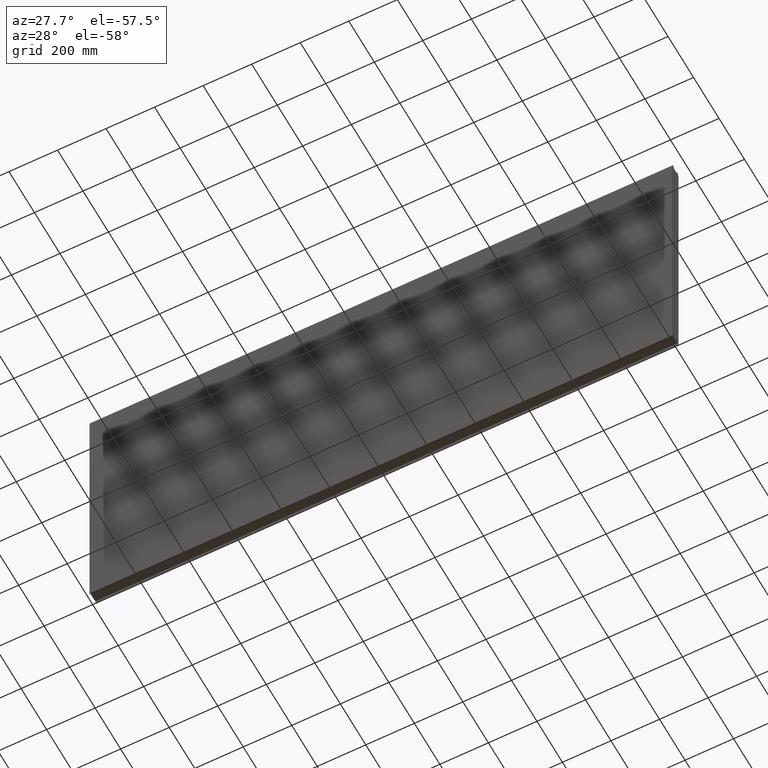
[diagram: clean part render]
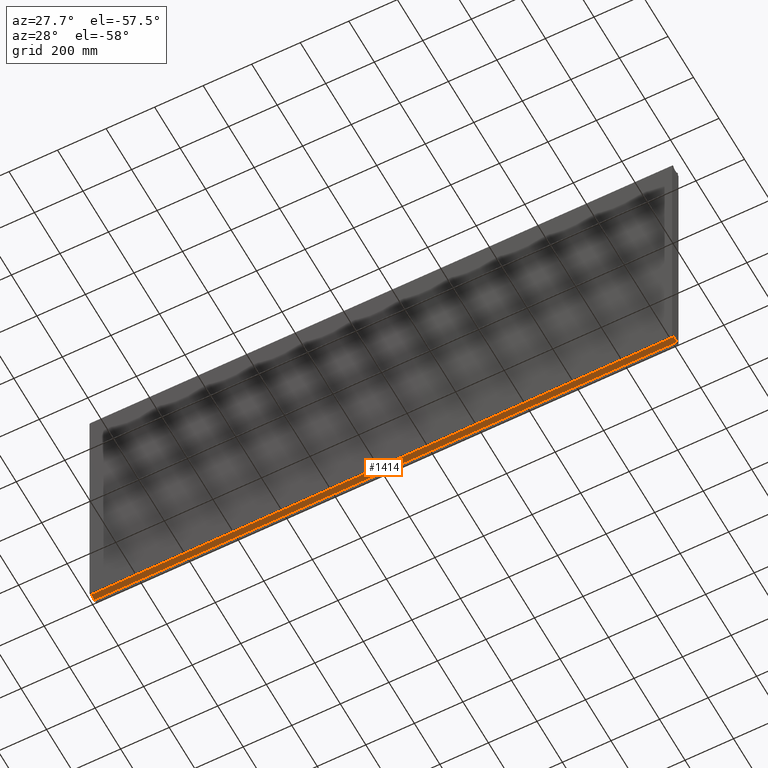
[diagram: same view with one face highlighted and labeled with its STEP entity id]
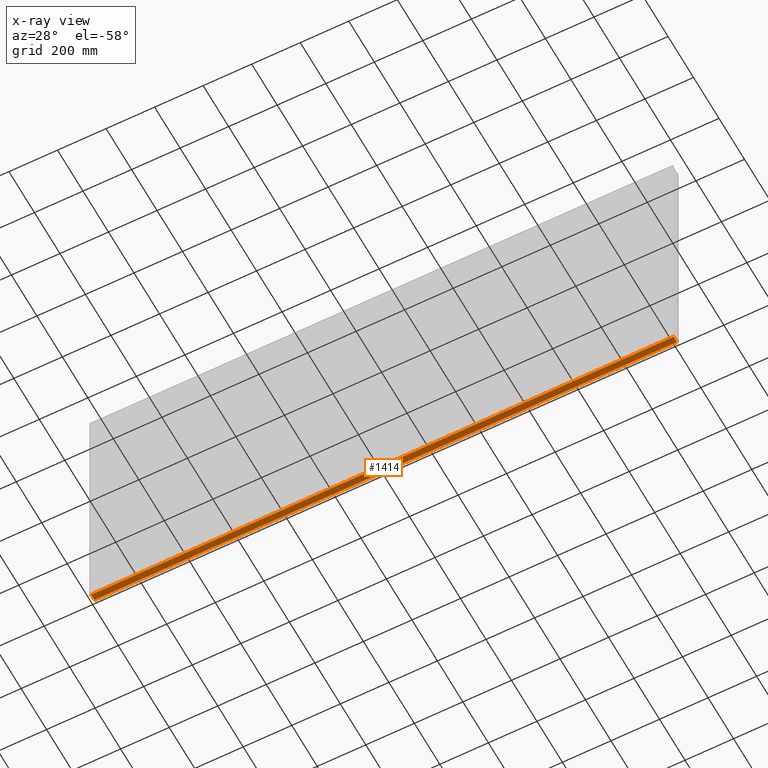
[diagram: x-ray of the same camera — body ghosted, the highlighted face saturated]
A machine part, auxiliary view. The second image highlights one B-rep face of the part: STEP entity #1414.
The next image is the same camera in x-ray: the body ghosted, the highlighted face saturated — about 0% of this face is hidden behind the body in this view.
In plain terms, the highlighted planar face has unit normal (0, 0, 1).
Its self-contained STEP definition (entity closure, byte-faithful):
#103 = CARTESIAN_POINT ( 'NONE',  ( -1200.000000000000227, 2684.120642039801169, -573.0000000000000000 ) ) ;
#132 = FACE_OUTER_BOUND ( 'NONE', #2220, .T. ) ;
#175 = LINE ( 'NONE', #184, #1206 ) ;
#184 = CARTESIAN_POINT ( 'NONE',  ( 4825.050751492372910, -12.99999999999999822, -573.0000000000000000 ) ) ;
#267 = VERTEX_POINT ( 'NONE', #2110 ) ;
#351 = VERTEX_POINT ( 'NONE', #884 ) ;
#356 = DIRECTION ( 'NONE',  ( 1.000000000000000000, 0.000000000000000000, -0.000000000000000000 ) ) ;
#439 = LINE ( 'NONE', #2329, #1958 ) ;
#469 = DIRECTION ( 'NONE',  ( -0.000000000000000000, -1.000000000000000000, -0.000000000000000000 ) ) ;
#482 = EDGE_CURVE ( 'NONE', #267, #351, #1142, .T. ) ;
#486 = CARTESIAN_POINT ( 'NONE',  ( -1200.000000000000227, 2684.120642039801169, -573.0000000000000000 ) ) ;
#640 = AXIS2_PLACEMENT_3D ( 'NONE', #103, #2182, #356 ) ;
#739 = VECTOR ( 'NONE', #2174, 1000.000000000000000 ) ;
#792 = ORIENTED_EDGE ( 'NONE', *, *, #2352, .F. ) ;
#884 = CARTESIAN_POINT ( 'NONE',  ( -1200.000000000000227, -12.99999999999990052, -573.0000000000000000 ) ) ;
#892 = CARTESIAN_POINT ( 'NONE',  ( 1199.999999999999773, 12.99999999999990052, -573.0000000000000000 ) ) ;
#980 = CARTESIAN_POINT ( 'NONE',  ( 4825.050751492372910, 12.99999999999999822, -573.0000000000000000 ) ) ;
#1142 = LINE ( 'NONE', #486, #1860 ) ;
#1182 = EDGE_CURVE ( 'NONE', #1748, #351, #175, .T. ) ;
#1206 = VECTOR ( 'NONE', #2480, 1000.000000000000000 ) ;
#1284 = EDGE_CURVE ( 'NONE', #1338, #1748, #439, .T. ) ;
#1321 = DIRECTION ( 'NONE',  ( -0.000000000000000000, -1.000000000000000000, -0.000000000000000000 ) ) ;
#1338 = VERTEX_POINT ( 'NONE', #892 ) ;
#1345 = PLANE ( 'NONE',  #640 ) ;
#1375 = ORIENTED_EDGE ( 'NONE', *, *, #482, .F. ) ;
#1414 = ADVANCED_FACE ( 'NONE', ( #132 ), #1345, .F. ) ;
#1541 = LINE ( 'NONE', #980, #739 ) ;
#1698 = ORIENTED_EDGE ( 'NONE', *, *, #1182, .T. ) ;
#1748 = VERTEX_POINT ( 'NONE', #2150 ) ;
#1860 = VECTOR ( 'NONE', #1321, 1000.000000000000000 ) ;
#1958 = VECTOR ( 'NONE', #469, 1000.000000000000000 ) ;
#2110 = CARTESIAN_POINT ( 'NONE',  ( -1200.000000000000227, 12.99999999999990052, -573.0000000000000000 ) ) ;
#2150 = CARTESIAN_POINT ( 'NONE',  ( 1199.999999999999773, -12.99999999999990052, -573.0000000000000000 ) ) ;
#2174 = DIRECTION ( 'NONE',  ( -1.000000000000000000, 0.000000000000000000, 0.000000000000000000 ) ) ;
#2182 = DIRECTION ( 'NONE',  ( 0.000000000000000000, 0.000000000000000000, 1.000000000000000000 ) ) ;
#2220 = EDGE_LOOP ( 'NONE', ( #792, #2610, #1698, #1375 ) ) ;
#2329 = CARTESIAN_POINT ( 'NONE',  ( 1199.999999999999773, 2684.120642039801169, -573.0000000000000000 ) ) ;
#2352 = EDGE_CURVE ( 'NONE', #1338, #267, #1541, .T. ) ;
#2480 = DIRECTION ( 'NONE',  ( -1.000000000000000000, 0.000000000000000000, 0.000000000000000000 ) ) ;
#2610 = ORIENTED_EDGE ( 'NONE', *, *, #1284, .T. ) ;